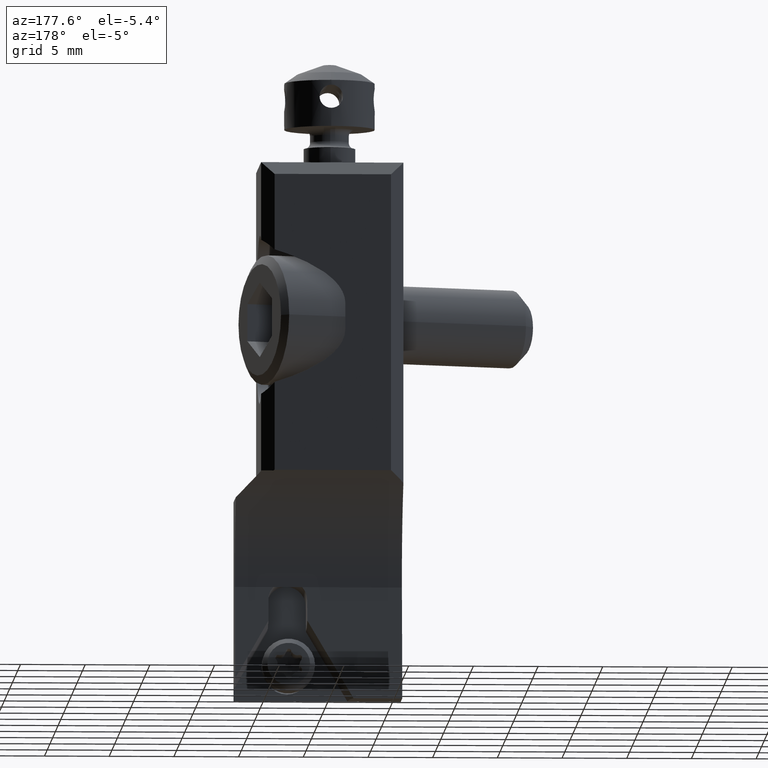
[diagram: clean part render]
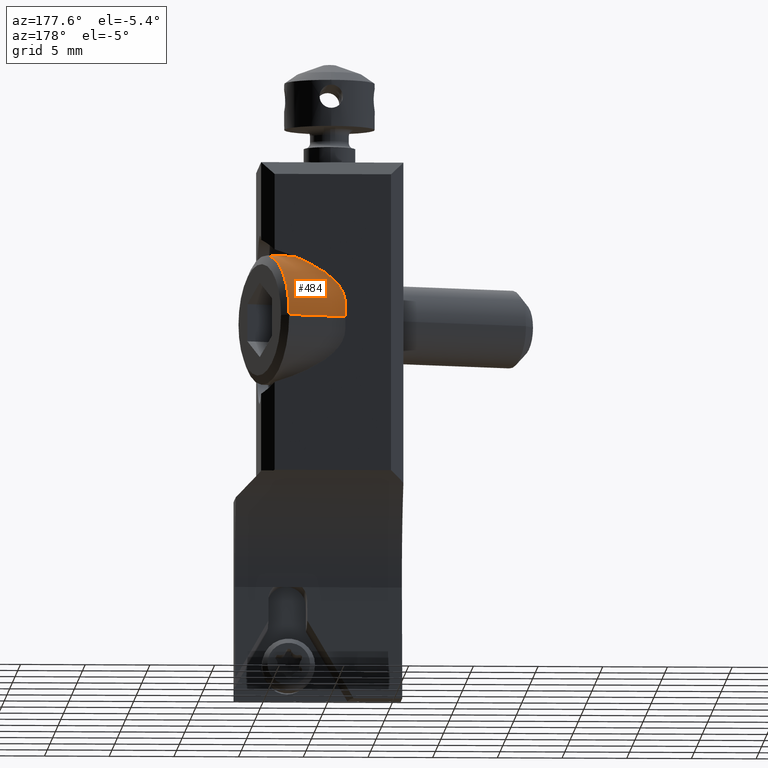
[diagram: same view with one face highlighted and labeled with its STEP entity id]
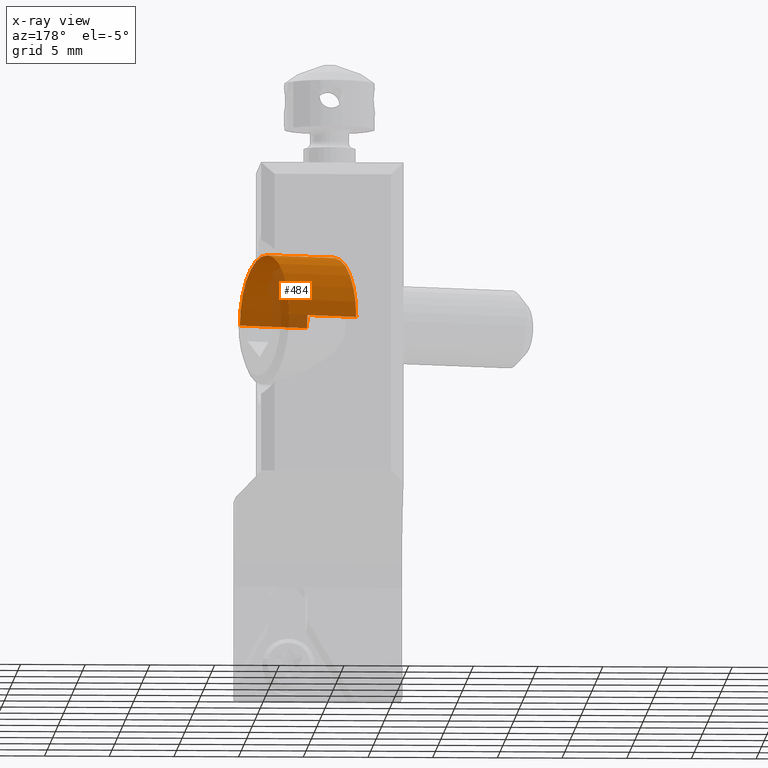
[diagram: x-ray of the same camera — body ghosted, the highlighted face saturated]
A machine part, auxiliary view. The second image highlights one B-rep face of the part: STEP entity #484.
The next image is the same camera in x-ray: the body ghosted, the highlighted face saturated — about 17% of this face is hidden behind the body in this view.
In plain terms, the highlighted cylindrical surface (partial cylindrical patch) has radius 5 mm, axis along (0.9397, 0.342, 0).
Its self-contained STEP definition (entity closure, byte-faithful):
#217=CYLINDRICAL_SURFACE('',#2986,4.999999999997);
#347=CIRCLE('',#2980,4.999999999997);
#350=CIRCLE('',#2985,5.000000000002);
#484=ADVANCED_FACE('',(#666),#217,.T.);
#666=FACE_OUTER_BOUND('',#817,.T.);
#817=EDGE_LOOP('',(#1895,#1896,#1897,#1898));
#986=LINE('',#5357,#1165);
#987=LINE('',#5358,#1166);
#1165=VECTOR('',#3762,1.);
#1166=VECTOR('',#3763,1.);
#1895=ORIENTED_EDGE('',*,*,#2540,.T.);
#1896=ORIENTED_EDGE('',*,*,#2543,.F.);
#1897=ORIENTED_EDGE('',*,*,#2545,.T.);
#1898=ORIENTED_EDGE('',*,*,#2544,.F.);
#2171=VERTEX_POINT('',#5350);
#2172=VERTEX_POINT('',#5351);
#2173=VERTEX_POINT('',#5355);
#2174=VERTEX_POINT('',#5356);
#2540=EDGE_CURVE('',#2171,#2172,#347,.T.);
#2543=EDGE_CURVE('',#2174,#2172,#986,.T.);
#2544=EDGE_CURVE('',#2171,#2173,#987,.T.);
#2545=EDGE_CURVE('',#2174,#2173,#350,.T.);
#2980=AXIS2_PLACEMENT_3D('',#5349,#3754,#3755);
#2985=AXIS2_PLACEMENT_3D('',#5360,#3766,#3767);
#2986=AXIS2_PLACEMENT_3D('',#5361,#3768,#3769);
#3754=DIRECTION('',(0.939692620785681,0.342020143326293,0.));
#3755=DIRECTION('',(-0.342020143326293,0.939692620785681,0.));
#3762=DIRECTION('',(-0.939692620785789,-0.342020143325996,0.));
#3763=DIRECTION('',(0.939692620785605,0.342020143326502,0.));
#3766=DIRECTION('',(-0.939692620786146,-0.342020143325017,0.));
#3767=DIRECTION('',(0.342020143325017,-0.939692620786146,0.));
#3768=DIRECTION('',(0.939692620785681,0.342020143326293,0.));
#3769=DIRECTION('',(-0.342020143326293,0.939692620785681,0.));
#5349=CARTESIAN_POINT('',(-5.638155724713,6.95155171697,-12.));
#5350=CARTESIAN_POINT('',(-7.348256441343,11.6500148209,-12.));
#5351=CARTESIAN_POINT('',(-3.928055008083,2.253088613044,-12.));
#5355=CARTESIAN_POINT('',(-2.085977764939,13.56532762353,-12.));
#5356=CARTESIAN_POINT('',(1.334223668314,4.168401415669,-12.));
#5357=CARTESIAN_POINT('',(1.334223668314,4.168401415669,-12.));
#5358=CARTESIAN_POINT('',(-7.348256441343,11.6500148209,-12.));
#5360=CARTESIAN_POINT('',(-0.3758770483121,8.866864519601,-12.));
#5361=CARTESIAN_POINT('',(-5.743401298245,6.913245460916,-12.));